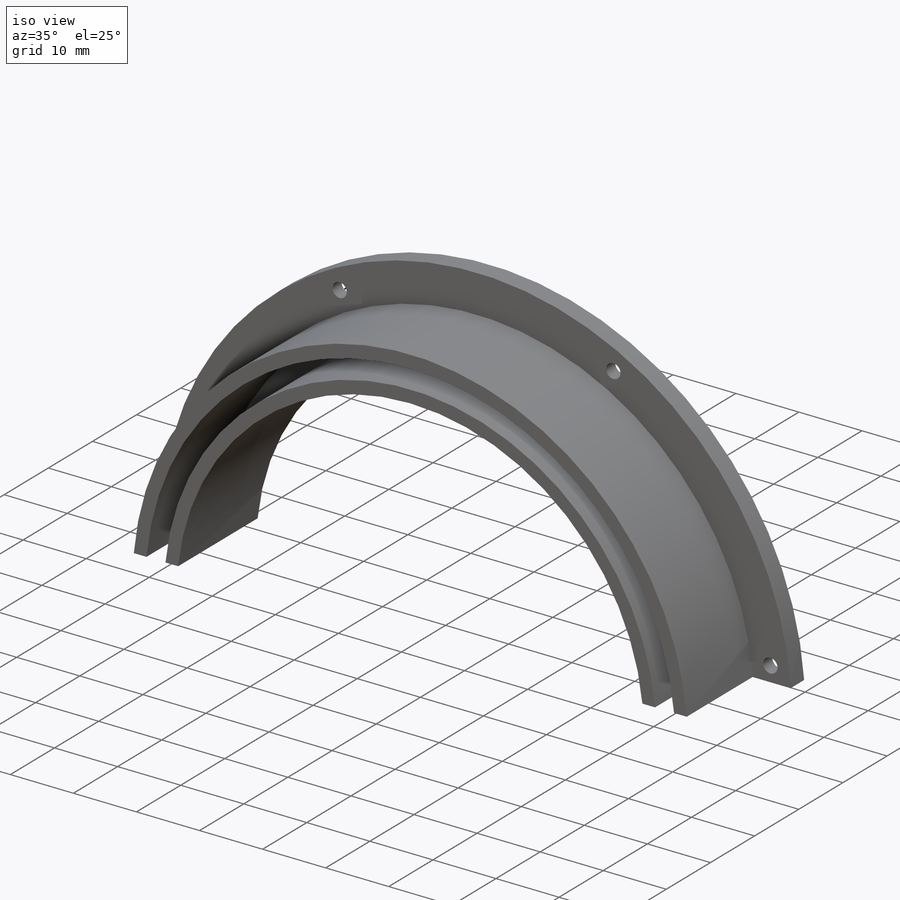
[diagram: iso view]
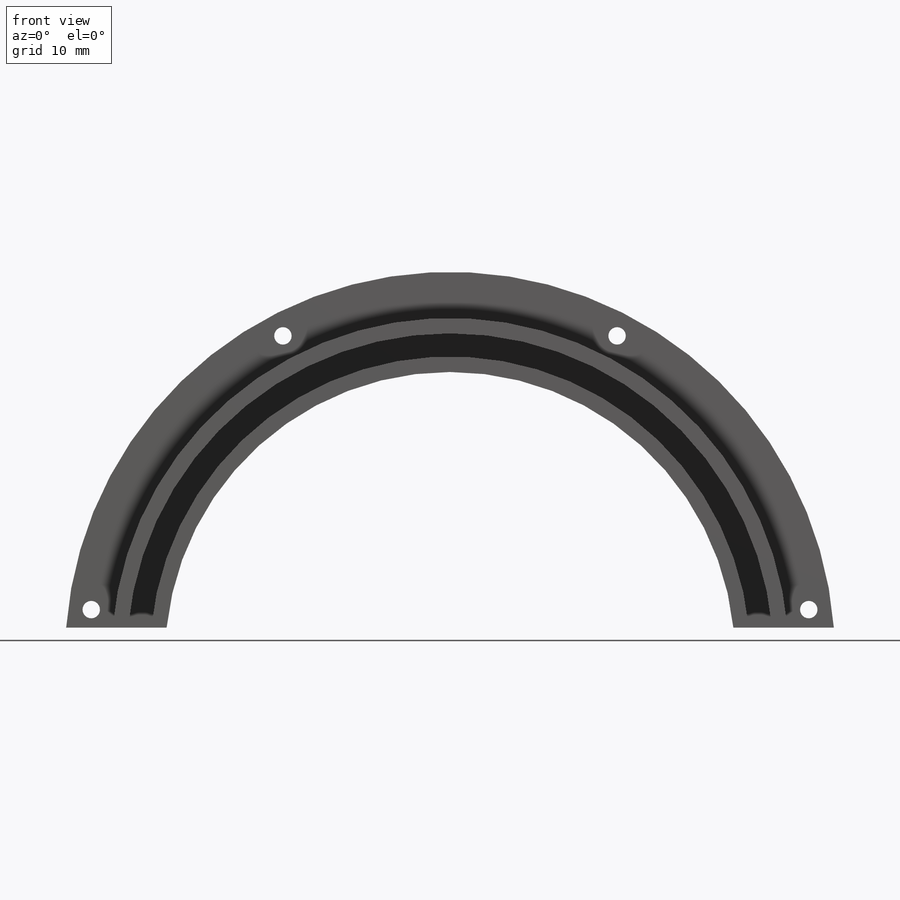
[diagram: front view]
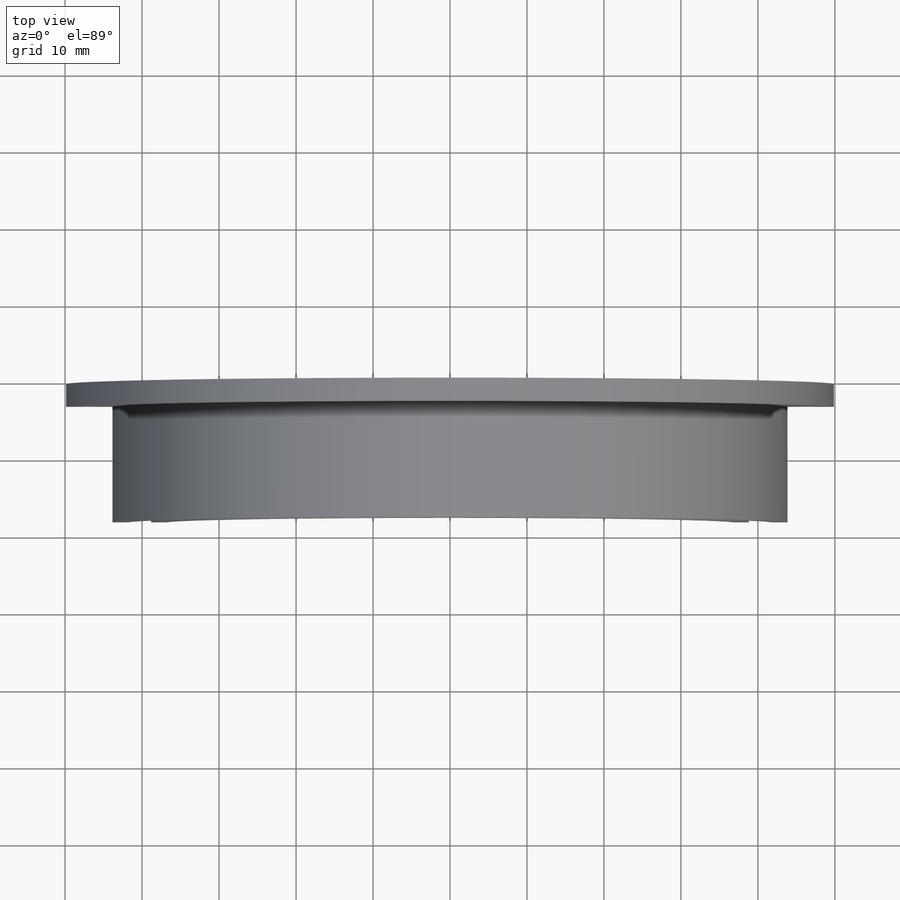
[diagram: top view]
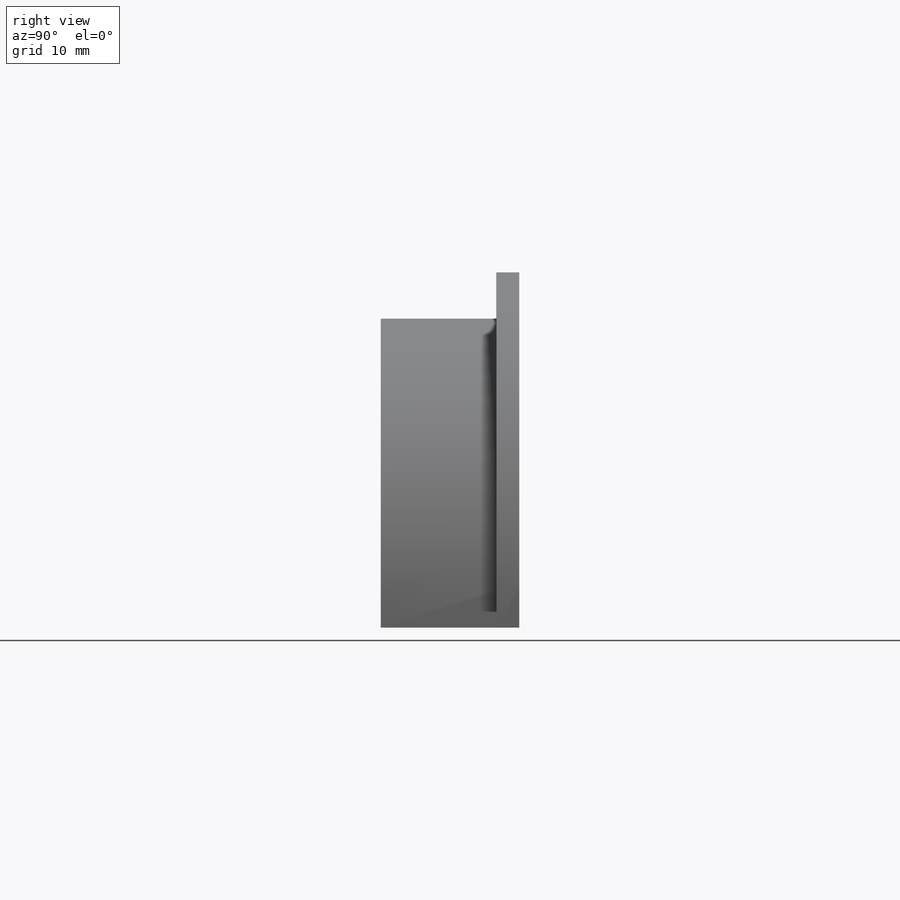
[diagram: right view]
SOLIDWORKS PART (.sldprt)
format: sldprt  version: not decoded by parser v0  size: 269,824 bytes
history: native  units: mm
features: sketch x4, material x1, revolve x1, cut_extrude x1, hole x1, thread x1, pattern_circular x1 (+11 scaffold rows collapsed)
feature tree (21):
  scaffold x11  (default folders/planes/origin — collapsed)
  material  "6061-T6 (SS)"
  sketch  "Sketch1"  dims[D1=2.0mm D2=3.0mm D3=2.0mm D4=3.0mm D5=39.0mm D6=18.0mm D7=6.0mm]
  revolve  "Revolve1"  Angle=180deg
  sketch  "Sketch2"  dims[D1=3.8mm]
  cut_extrude  "Cut-Extrude1"  [1 undecoded]
  hole  "#4-40 Tapped Hole1"  Diameter=2.2606mm Depth=18mm
  sketch  "Sketch4"  dims[c1.D1=~18.72776mm c2.D1=7.5deg c2.D2=47.0mm]
  sketch  "Sketch3"  dims[hole-wizard template sketch: 54 standard entries collapsed; hole parameters kept: c17.Thru Tap Drill Dia.=2.2606mm c17.Thru Tap Drill Depth=18.0mm c17.Near C'Sink Dia.=4.1148mm c17.D4=~3.666174mm c17.Near C'Sink Angle=90.0deg]
  thread  "Hole Thread1"  Diameter=2.8448mm  [1 undecoded]
  pattern_circular  "CirPattern1"  Count=4 Angle=55deg
decode coverage: 8 of 9 modeling features carry decoded parameters
note: ~ marks probable driven/reference dimensions
note: 2 parameter values undecoded
note: suppression state not decoded; provenance and decode notes live in map.json
